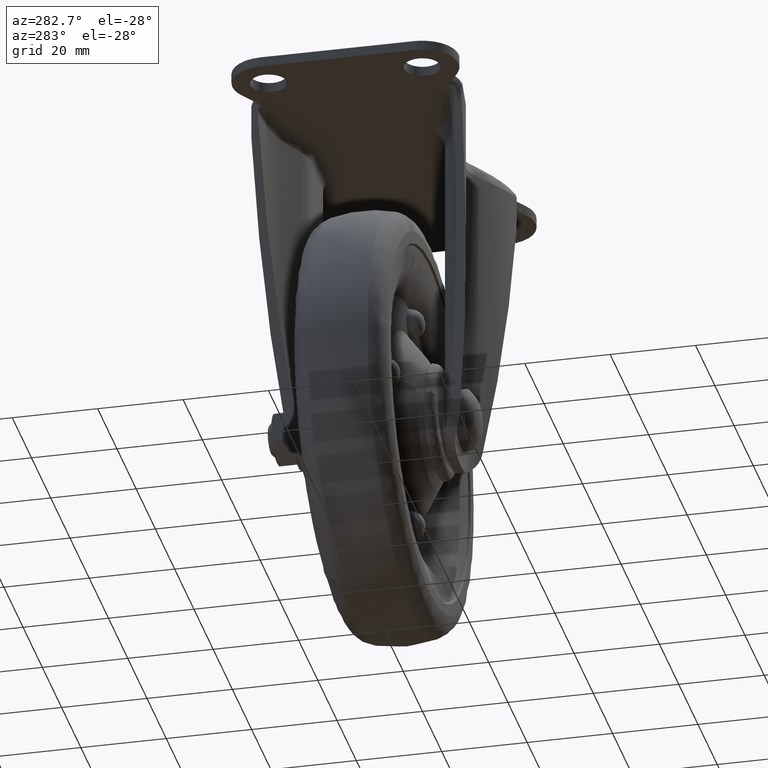
[diagram: clean part render]
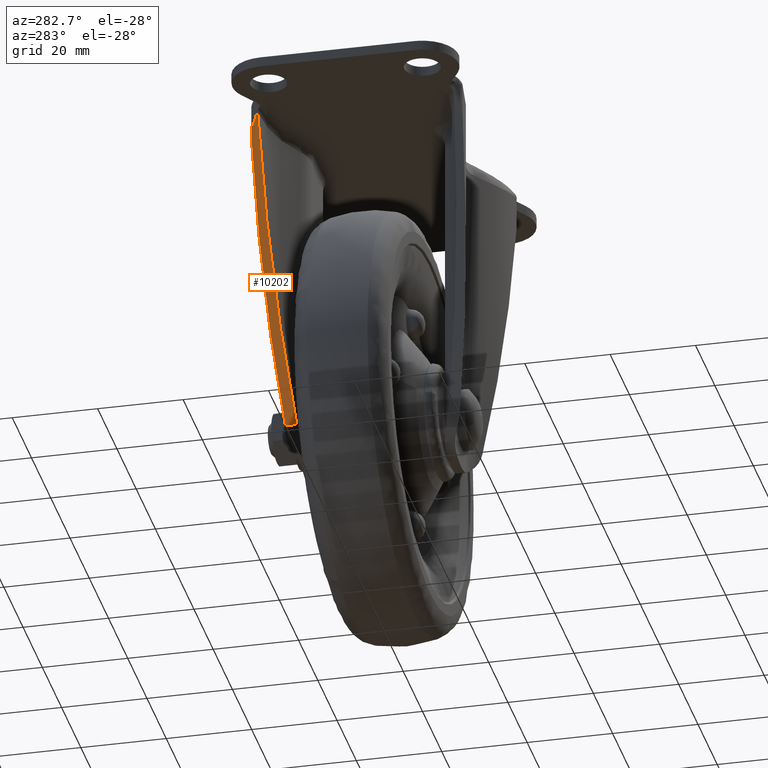
[diagram: same view with one face highlighted and labeled with its STEP entity id]
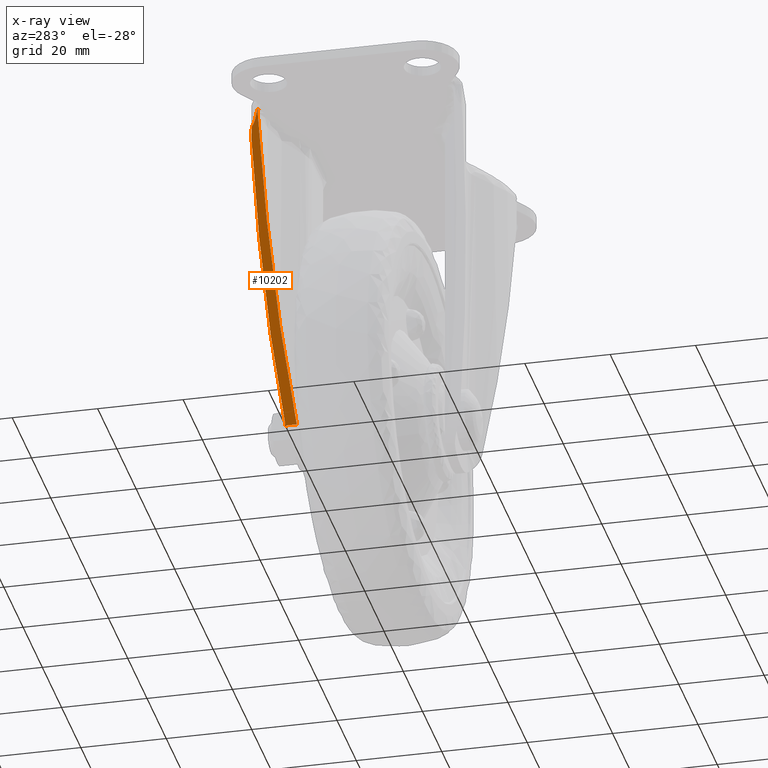
[diagram: x-ray of the same camera — body ghosted, the highlighted face saturated]
A machine part, auxiliary view. The second image highlights one B-rep face of the part: STEP entity #10202.
The next image is the same camera in x-ray: the body ghosted, the highlighted face saturated — about 0% of this face is hidden behind the body in this view.
In plain terms, the highlighted face is a freeform B-spline surface patch.
Its self-contained STEP definition (entity closure, byte-faithful):
#6876=CARTESIAN_POINT('',(-29.611849970934550,22.952769165545249,-3.060506106343115));
#6877=VERTEX_POINT('',#6876);
#6997=CARTESIAN_POINT('',(-28.656111825728249,24.506639863499000,-6.935027146308920));
#6998=VERTEX_POINT('',#6997);
#7014=CARTESIAN_POINT('',(-29.611849970934589,22.952769165545192,-3.060506106343127));
#7015=CARTESIAN_POINT('',(-28.924256941097308,23.600709749284349,-5.847978464123066));
#7016=CARTESIAN_POINT('',(-28.656111825728249,24.506639863499000,-6.935027146308920));
#7024=(BOUNDED_CURVE()B_SPLINE_CURVE(2,(#7014,#7015,#7016),.UNSPECIFIED.,.F.,.U.)CURVE()GEOMETRIC_REPRESENTATION_ITEM()QUASI_UNIFORM_CURVE()RATIONAL_B_SPLINE_CURVE((1.0,0.965444274733566,1.0))REPRESENTATION_ITEM(''));
#7025=EDGE_CURVE('',#6877,#6998,#7024,.T.);
#7377=CARTESIAN_POINT('',(-29.610506756603399,22.760518412284750,-3.060349079596730));
#7378=VERTEX_POINT('',#7377);
#7379=CARTESIAN_POINT('',(-29.610506756603399,22.760518412284750,-3.060349079596730));
#7380=CARTESIAN_POINT('',(-29.611849970934550,22.952769165545249,-3.060506106343115));
#7381=QUASI_UNIFORM_CURVE('',1,(#7379,#7380),.UNSPECIFIED.,.F.,.U.);
#7382=EDGE_CURVE('',#7378,#6877,#7381,.T.);
#7957=CARTESIAN_POINT('',(-29.421014821963450,22.954649942349700,-3.834143533667900));
#7958=VERTEX_POINT('',#7957);
#7959=CARTESIAN_POINT('',(-29.421014821963450,22.954649942349700,-3.834143533667900));
#7960=CARTESIAN_POINT('',(-29.494439071587859,22.958014115231101,-3.534441505605348));
#7961=CARTESIAN_POINT('',(-29.562000313590310,22.852683474238191,-3.258495104493413));
#7962=CARTESIAN_POINT('',(-29.587335069225421,22.813185590964270,-3.155018104465766));
#7963=CARTESIAN_POINT('',(-29.610506756603399,22.760518412284750,-3.060349079596730));
#7964=B_SPLINE_CURVE_WITH_KNOTS('',2,(#7959,#7960,#7961,#7962,#7963),.UNSPECIFIED.,.F.,.U.,(3,2,3),(0.0,0.250000000000000,0.341842513225481),.UNSPECIFIED.);
#7965=EDGE_CURVE('',#7958,#7378,#7964,.T.);
#8543=CARTESIAN_POINT('',(-27.999450659932101,24.736656133661100,-9.597103067173942));
#8544=VERTEX_POINT('',#8543);
#8545=CARTESIAN_POINT('',(-28.656111825728249,24.506639863499000,-6.935027146308920));
#8546=CARTESIAN_POINT('',(-28.370457237111765,24.743481415567416,-8.093058474564131));
#8547=CARTESIAN_POINT('',(-27.999450659932101,24.736656133661100,-9.597103067173942));
#8555=(BOUNDED_CURVE()B_SPLINE_CURVE(2,(#8545,#8546,#8547),.UNSPECIFIED.,.F.,.U.)CURVE()GEOMETRIC_REPRESENTATION_ITEM()QUASI_UNIFORM_CURVE()RATIONAL_B_SPLINE_CURVE((1.0,0.937535149847159,1.0))REPRESENTATION_ITEM(''));
#8556=EDGE_CURVE('',#6998,#8544,#8555,.T.);
#10156=CARTESIAN_POINT('',(-30.509005735356819,17.443329834484931,0.576524499598114));
#10157=CARTESIAN_POINT('',(-10.753620199084780,17.443329834484931,-79.510952699924900));
#10158=CARTESIAN_POINT('',(-30.509005735356819,25.083796474515911,0.576524499598114));
#10159=CARTESIAN_POINT('',(-10.753620199084780,25.083796474515911,-79.510952699924900));
#10160=B_SPLINE_SURFACE_WITH_KNOTS('',1,1,((#10156,#10158),(#10157,#10159)),.UNSPECIFIED.,.F.,.F.,.U.,(2,2),(2,2),(0.0,82.488055267843876),(0.0,7.640466640030986),.UNSPECIFIED.);
#10161=ORIENTED_EDGE('',*,*,#7382,.T.);
#10162=ORIENTED_EDGE('',*,*,#7025,.T.);
#10163=ORIENTED_EDGE('',*,*,#8556,.T.);
#10164=CARTESIAN_POINT('',(-11.650774999999900,20.450552474193799,-75.873925999999898));
#10165=VERTEX_POINT('',#10164);
#10166=CARTESIAN_POINT('',(-11.650774999999900,20.450552474193749,-75.873925999999997));
#10167=CARTESIAN_POINT('',(-19.305205206889937,24.576711054977654,-44.843197516159549));
#10168=CARTESIAN_POINT('',(-27.999450659932101,24.736656133661100,-9.597103067173942));
#10176=(BOUNDED_CURVE()B_SPLINE_CURVE(2,(#10166,#10167,#10168),.UNSPECIFIED.,.F.,.U.)CURVE()GEOMETRIC_REPRESENTATION_ITEM()QUASI_UNIFORM_CURVE()RATIONAL_B_SPLINE_CURVE((1.0,0.971810646279226,1.0))REPRESENTATION_ITEM(''));
#10177=EDGE_CURVE('',#10165,#8544,#10176,.T.);
#10178=ORIENTED_EDGE('',*,*,#10177,.F.);
#10179=CARTESIAN_POINT('',(-11.650774999999900,17.790308808874350,-75.873925999999898));
#10180=VERTEX_POINT('',#10179);
#10181=CARTESIAN_POINT('',(-11.650774999999900,17.790308808874350,-75.873925999999898));
#10182=CARTESIAN_POINT('',(-11.650774999999900,20.450552474193799,-75.873925999999898));
#10183=QUASI_UNIFORM_CURVE('',1,(#10181,#10182),.UNSPECIFIED.,.F.,.U.);
#10184=EDGE_CURVE('',#10180,#10165,#10183,.T.);
#10185=ORIENTED_EDGE('',*,*,#10184,.F.);
#10186=CARTESIAN_POINT('',(-11.650774999999900,17.790308808874350,-75.873925999999898));
#10187=CARTESIAN_POINT('',(-19.919049159331568,22.495014788489492,-42.354700723476356));
#10188=CARTESIAN_POINT('',(-29.421014821963460,22.954649942349668,-3.834143533667899));
#10196=(BOUNDED_CURVE()B_SPLINE_CURVE(2,(#10186,#10187,#10188),.UNSPECIFIED.,.F.,.U.)CURVE()GEOMETRIC_REPRESENTATION_ITEM()QUASI_UNIFORM_CURVE()RATIONAL_B_SPLINE_CURVE((1.0,0.972632527403128,1.0))REPRESENTATION_ITEM(''));
#10197=EDGE_CURVE('',#10180,#7958,#10196,.T.);
#10198=ORIENTED_EDGE('',*,*,#10197,.T.);
#10199=ORIENTED_EDGE('',*,*,#7965,.T.);
#10200=EDGE_LOOP('',(#10161,#10162,#10163,#10178,#10185,#10198,#10199));
#10201=FACE_OUTER_BOUND('',#10200,.T.);
#10202=ADVANCED_FACE('',(#10201),#10160,.F.);